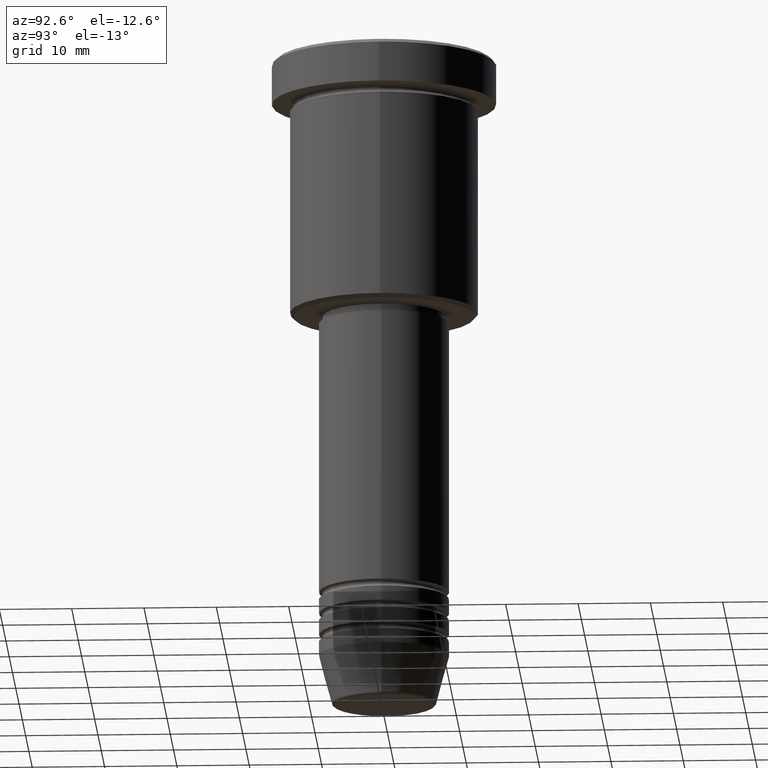
[diagram: clean part render]
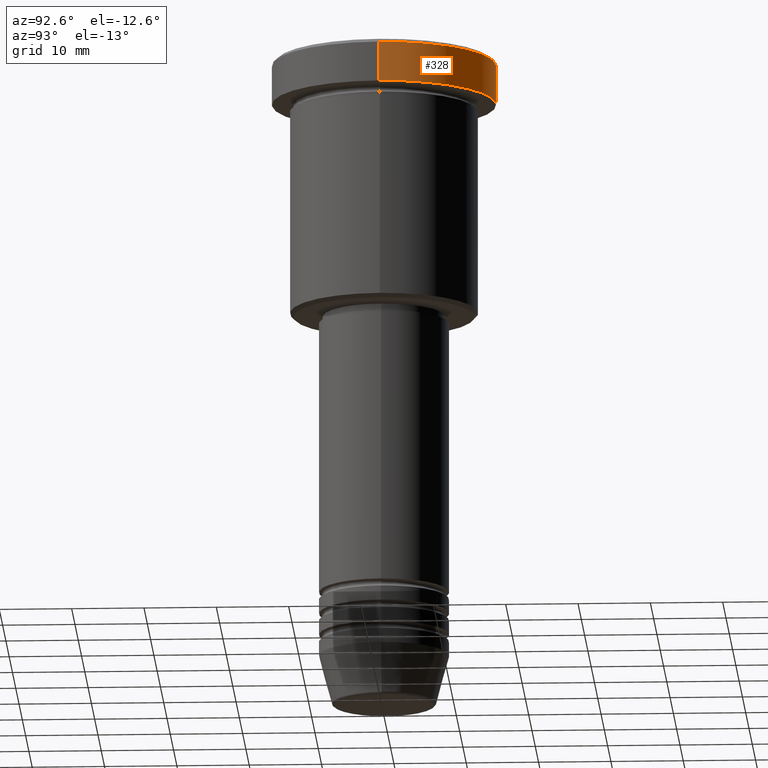
[diagram: same view with one face highlighted and labeled with its STEP entity id]
A machine part, auxiliary view. The second image highlights one B-rep face of the part: STEP entity #328.
In plain terms, the highlighted cylindrical surface (partial cylindrical patch) has radius 15.5 mm, axis along (-0, -0, 1).
Its self-contained STEP definition (entity closure, byte-faithful):
#10 = DIRECTION ( 'NONE',  ( 0.000000000000000000, 0.000000000000000000, -1.000000000000000000 ) ) ;
#34 = CYLINDRICAL_SURFACE ( 'NONE', #280, 15.50000000000000000 ) ;
#35 = CARTESIAN_POINT ( 'NONE',  ( -15.50000000000000000, 1.898202538678397557E-15, -0.4999999999999987232 ) ) ;
#67 = VECTOR ( 'NONE', #610, 1000.000000000000000 ) ;
#94 = ORIENTED_EDGE ( 'NONE', *, *, #147, .T. ) ;
#111 = DIRECTION ( 'NONE',  ( -0.000000000000000000, -0.000000000000000000, 1.000000000000000000 ) ) ;
#112 = LINE ( 'NONE', #841, #151 ) ;
#147 = EDGE_CURVE ( 'NONE', #1169, #728, #170, .T. ) ;
#151 = VECTOR ( 'NONE', #480, 1000.000000000000000 ) ;
#169 = CARTESIAN_POINT ( 'NONE',  ( 0.000000000000000000, 0.000000000000000000, -0.4999999999999987232 ) ) ;
#170 = CIRCLE ( 'NONE', #325, 15.50000000000000000 ) ;
#186 = DIRECTION ( 'NONE',  ( 1.000000000000000000, 0.000000000000000000, 0.000000000000000000 ) ) ;
#198 = EDGE_CURVE ( 'NONE', #650, #728, #986, .T. ) ;
#199 = FACE_OUTER_BOUND ( 'NONE', #495, .T. ) ;
#217 = CARTESIAN_POINT ( 'NONE',  ( -15.50000000000000000, 1.898202538678397557E-15, -5.999999999999995559 ) ) ;
#280 = AXIS2_PLACEMENT_3D ( 'NONE', #562, #111, #369 ) ;
#298 = AXIS2_PLACEMENT_3D ( 'NONE', #638, #1021, #186 ) ;
#325 = AXIS2_PLACEMENT_3D ( 'NONE', #169, #10, #538 ) ;
#328 = ADVANCED_FACE ( 'NONE', ( #199 ), #34, .T. ) ;
#369 = DIRECTION ( 'NONE',  ( 1.000000000000000000, 0.000000000000000000, 0.000000000000000000 ) ) ;
#396 = EDGE_CURVE ( 'NONE', #650, #450, #526, .T. ) ;
#450 = VERTEX_POINT ( 'NONE', #217 ) ;
#474 = ORIENTED_EDGE ( 'NONE', *, *, #198, .F. ) ;
#480 = DIRECTION ( 'NONE',  ( -0.000000000000000000, -0.000000000000000000, 1.000000000000000000 ) ) ;
#495 = EDGE_LOOP ( 'NONE', ( #750, #739, #94, #474 ) ) ;
#505 = CARTESIAN_POINT ( 'NONE',  ( 15.50000000000000000, 0.000000000000000000, -0.4999999999999987232 ) ) ;
#526 = CIRCLE ( 'NONE', #298, 15.50000000000000000 ) ;
#538 = DIRECTION ( 'NONE',  ( 1.000000000000000000, 0.000000000000000000, 0.000000000000000000 ) ) ;
#562 = CARTESIAN_POINT ( 'NONE',  ( 0.000000000000000000, 0.000000000000000000, 0.000000000000000000 ) ) ;
#610 = DIRECTION ( 'NONE',  ( -0.000000000000000000, -0.000000000000000000, 1.000000000000000000 ) ) ;
#638 = CARTESIAN_POINT ( 'NONE',  ( 0.000000000000000000, 0.000000000000000000, -5.999999999999995559 ) ) ;
#650 = VERTEX_POINT ( 'NONE', #1097 ) ;
#728 = VERTEX_POINT ( 'NONE', #505 ) ;
#739 = ORIENTED_EDGE ( 'NONE', *, *, #1141, .T. ) ;
#750 = ORIENTED_EDGE ( 'NONE', *, *, #396, .T. ) ;
#841 = CARTESIAN_POINT ( 'NONE',  ( -15.50000000000000000, 1.898202538678397557E-15, 0.000000000000000000 ) ) ;
#986 = LINE ( 'NONE', #1084, #67 ) ;
#1021 = DIRECTION ( 'NONE',  ( -0.000000000000000000, -0.000000000000000000, 1.000000000000000000 ) ) ;
#1084 = CARTESIAN_POINT ( 'NONE',  ( 15.50000000000000000, 0.000000000000000000, 0.000000000000000000 ) ) ;
#1097 = CARTESIAN_POINT ( 'NONE',  ( 15.50000000000000000, 0.000000000000000000, -5.999999999999995559 ) ) ;
#1141 = EDGE_CURVE ( 'NONE', #450, #1169, #112, .T. ) ;
#1169 = VERTEX_POINT ( 'NONE', #35 ) ;